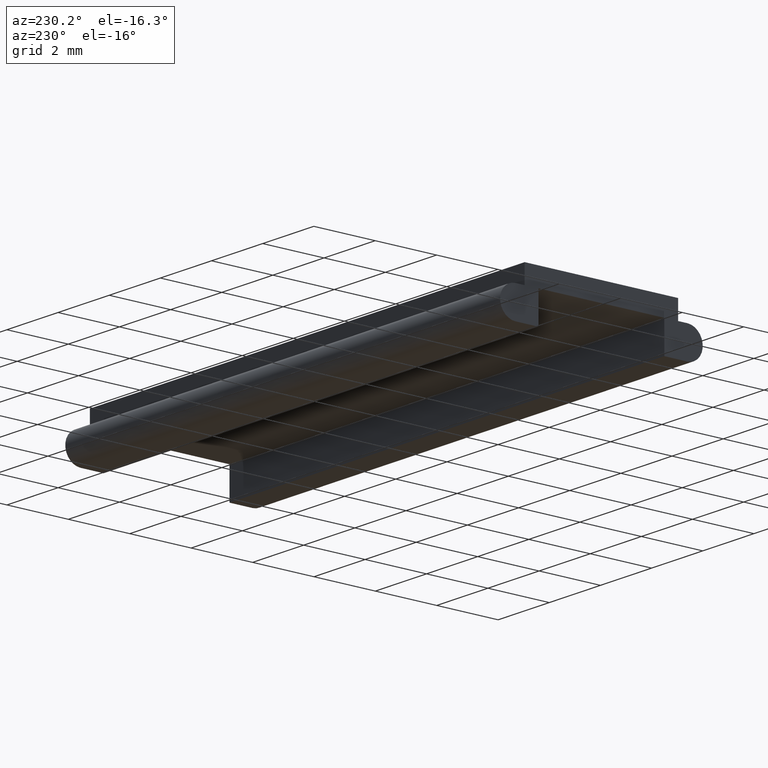
[diagram: clean part render]
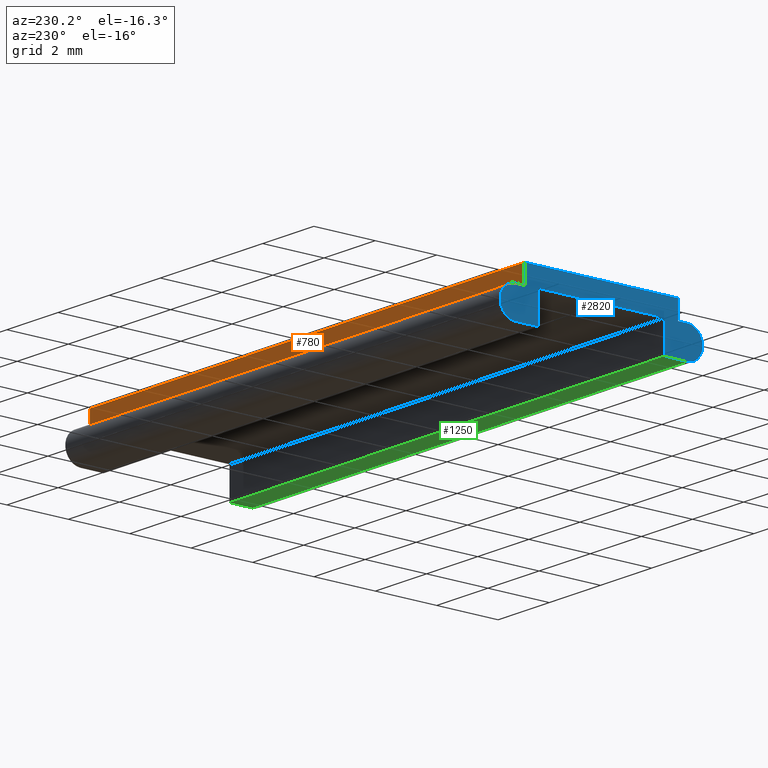
[diagram: same view with three faces highlighted in distinct colors, each labeled with its STEP entity id]
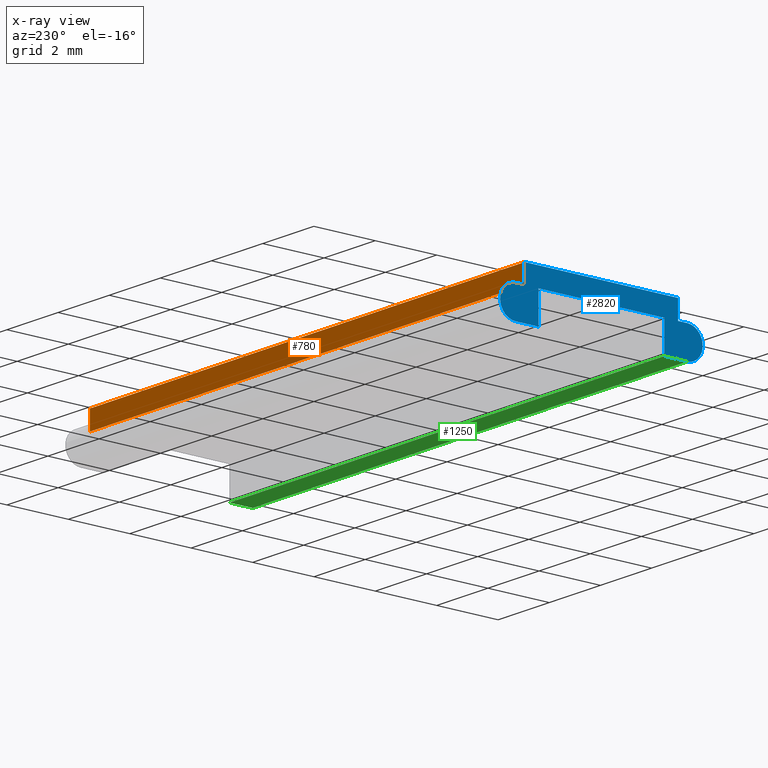
[diagram: x-ray of the same camera — body ghosted, the three highlighted faces saturated]
A machine part, auxiliary view with three faces highlighted in distinct colors.
The next image is the same camera in x-ray (body ghosted, the three faces saturated) — at least one of them is partly hidden behind the body in this view.
Their STEP definitions:

[orange] entity #780 — the highlighted planar face has unit normal (0, 1, 0).
#100=CARTESIAN_POINT('',(398.426447634406,987.424347545384,
0.0999999999999876));
#110=VERTEX_POINT('',#100);
#160=CARTESIAN_POINT('',(0.,987.424347545384,0.0999999999999876));
#170=DIRECTION('',(-1.,0.,0.));
#180=VECTOR('',#170,1.);
#190=LINE('',#160,#180);
#200=CARTESIAN_POINT('',(381.426447634406,987.424347545384,
0.0999999999999876));
#210=VERTEX_POINT('',#200);
#220=EDGE_CURVE('',#110,#210,#190,.T.);
#480=CARTESIAN_POINT('',(381.426447634406,987.424347545384,
-0.300000000000022));
#490=DIRECTION('',(0.,-1.,0.));
#500=DIRECTION('',(0.,0.,1.));
#510=AXIS2_PLACEMENT_3D('',#480,#490,#500);
#520=PLANE('',#510);
#530=CARTESIAN_POINT('',(381.426447634406,987.424347545384,0.));
#540=DIRECTION('',(0.,0.,-1.));
#550=VECTOR('',#540,1.);
#560=LINE('',#530,#550);
#570=CARTESIAN_POINT('',(381.426447634406,987.424347545384,
-0.500000000000021));
#580=VERTEX_POINT('',#570);
#590=EDGE_CURVE('',#210,#580,#560,.T.);
#600=ORIENTED_EDGE('',*,*,#590,.T.);
#610=ORIENTED_EDGE('',*,*,#220,.T.);
#620=CARTESIAN_POINT('',(398.426447634406,987.424347545384,0.));
#630=DIRECTION('',(0.,0.,1.));
#640=VECTOR('',#630,1.);
#650=LINE('',#620,#640);
#660=CARTESIAN_POINT('',(398.426447634406,987.424347545384,
-0.500000000000021));
#670=VERTEX_POINT('',#660);
#680=EDGE_CURVE('',#670,#110,#650,.T.);
#690=ORIENTED_EDGE('',*,*,#680,.T.);
#700=CARTESIAN_POINT('',(0.,987.424347545384,-0.500000000000021));
#710=DIRECTION('',(-1.,0.,0.));
#720=VECTOR('',#710,1.);
#730=LINE('',#700,#720);
#740=EDGE_CURVE('',#670,#580,#730,.T.);
#750=ORIENTED_EDGE('',*,*,#740,.F.);
#760=EDGE_LOOP('',(#750,#690,#610,#600));
#770=FACE_OUTER_BOUND('',#760,.T.);
#780=ADVANCED_FACE('',(#770),#520,.T.);

[blue] entity #2820 — the highlighted planar face has unit normal (-1, 0, 0).
#60=CARTESIAN_POINT('',(398.426447634406,0.,0.100000000000048));
#70=DIRECTION('',(0.,1.,-6.12323399573677E-17));
#80=VECTOR('',#70,1.);
#90=LINE('',#60,#80);
#100=CARTESIAN_POINT('',(398.426447634406,987.424347545384,
0.0999999999999876));
#110=VERTEX_POINT('',#100);
#120=CARTESIAN_POINT('',(398.426447634406,992.424347545384,
0.0999999999999873));
#130=VERTEX_POINT('',#120);
#140=EDGE_CURVE('',#110,#130,#90,.T.);
#620=CARTESIAN_POINT('',(398.426447634406,987.424347545384,0.));
#630=DIRECTION('',(0.,0.,1.));
#640=VECTOR('',#630,1.);
#650=LINE('',#620,#640);
#660=CARTESIAN_POINT('',(398.426447634406,987.424347545384,
-0.500000000000021));
#670=VERTEX_POINT('',#660);
#680=EDGE_CURVE('',#670,#110,#650,.T.);
#950=CARTESIAN_POINT('',(398.426447634406,991.974347545384,
-1.50000000000001));
#960=VERTEX_POINT('',#950);
#1010=CARTESIAN_POINT('',(398.426447634406,0.,-1.49999999999995));
#1020=DIRECTION('',(0.,-1.,6.12323399573677E-17));
#1030=VECTOR('',#1020,1.);
#1040=LINE('',#1010,#1030);
#1050=CARTESIAN_POINT('',(398.426447634406,992.724347545384,
-1.50000000000001));
#1060=VERTEX_POINT('',#1050);
#1070=EDGE_CURVE('',#1060,#960,#1040,.T.);
#1520=CARTESIAN_POINT('',(398.426447634406,992.724347545384,
-0.500000000000021));
#1530=VERTEX_POINT('',#1520);
#1560=CARTESIAN_POINT('',(398.426447634406,0.,-0.500000000000021));
#1570=DIRECTION('',(0.,1.,0.));
#1580=VECTOR('',#1570,1.);
#1590=LINE('',#1560,#1580);
#1600=CARTESIAN_POINT('',(398.426447634406,992.424347545384,
-0.500000000000021));
#1610=VERTEX_POINT('',#1600);
#1620=EDGE_CURVE('',#1610,#1530,#1590,.T.);
#1970=CARTESIAN_POINT('',(398.426447634406,991.974347545384,
-0.500000000000021));
#1980=VERTEX_POINT('',#1970);
#2010=CARTESIAN_POINT('',(398.426447634406,991.974347545384,0.));
#2020=DIRECTION('',(0.,0.,1.));
#2030=VECTOR('',#2020,1.);
#2040=LINE('',#2010,#2030);
#2050=EDGE_CURVE('',#960,#1980,#2040,.T.);
#2180=CARTESIAN_POINT('',(398.426447634406,993.884349945384,
-1.12500000000001));
#2190=DIRECTION('',(1.,0.,0.));
#2200=DIRECTION('',(0.,-6.12323399573677E-17,-1.));
#2210=AXIS2_PLACEMENT_3D('',#2180,#2190,#2200);
#2220=PLANE('',#2210);
#2230=ORIENTED_EDGE('',*,*,#680,.F.);
#2240=ORIENTED_EDGE('',*,*,#140,.F.);
#2250=CARTESIAN_POINT('',(398.426447634406,992.424347545384,0.));
#2260=DIRECTION('',(0.,0.,-1.));
#2270=VECTOR('',#2260,1.);
#2280=LINE('',#2250,#2270);
#2290=EDGE_CURVE('',#130,#1610,#2280,.T.);
#2300=ORIENTED_EDGE('',*,*,#2290,.F.);
#2310=ORIENTED_EDGE('',*,*,#1620,.F.);
#2320=CARTESIAN_POINT('',(398.426447634406,992.724347545384,
-1.00000000000002));
#2330=DIRECTION('',(1.,0.,0.));
#2340=DIRECTION('',(0.,1.,0.));
#2350=AXIS2_PLACEMENT_3D('',#2320,#2330,#2340);
#2360=CIRCLE('',#2350,0.5);
#2370=EDGE_CURVE('',#1060,#1530,#2360,.T.);
#2380=ORIENTED_EDGE('',*,*,#2370,.T.);
#2390=ORIENTED_EDGE('',*,*,#1070,.F.);
#2400=ORIENTED_EDGE('',*,*,#2050,.F.);
#2410=CARTESIAN_POINT('',(398.426447634406,0.,-0.500000000000021));
#2420=DIRECTION('',(0.,-1.,0.));
#2430=VECTOR('',#2420,1.);
#2440=LINE('',#2410,#2430);
#2450=CARTESIAN_POINT('',(398.426447634406,987.874347545384,
-0.500000000000021));
#2460=VERTEX_POINT('',#2450);
#2470=EDGE_CURVE('',#1980,#2460,#2440,.T.);
#2480=ORIENTED_EDGE('',*,*,#2470,.F.);
#2490=CARTESIAN_POINT('',(398.426447634406,987.874347545384,0.));
#2500=DIRECTION('',(0.,0.,-1.));
#2510=VECTOR('',#2500,1.);
#2520=LINE('',#2490,#2510);
#2530=CARTESIAN_POINT('',(398.426447634406,987.874347545384,
-1.50000000000001));
#2540=VERTEX_POINT('',#2530);
#2550=EDGE_CURVE('',#2460,#2540,#2520,.T.);
#2560=ORIENTED_EDGE('',*,*,#2550,.F.);
#2570=CARTESIAN_POINT('',(398.426447634406,0.,-1.49999999999995));
#2580=DIRECTION('',(0.,-1.,6.12323399573677E-17));
#2590=VECTOR('',#2580,1.);
#2600=LINE('',#2570,#2590);
#2610=CARTESIAN_POINT('',(398.426447634406,987.124347545384,
-1.50000000000002));
#2620=VERTEX_POINT('',#2610);
#2630=EDGE_CURVE('',#2540,#2620,#2600,.T.);
#2640=ORIENTED_EDGE('',*,*,#2630,.F.);
#2650=CARTESIAN_POINT('',(398.426447634406,987.124347545384,
-1.00000000000002));
#2660=DIRECTION('',(1.,0.,0.));
#2670=DIRECTION('',(0.,1.,0.));
#2680=AXIS2_PLACEMENT_3D('',#2650,#2660,#2670);
#2690=CIRCLE('',#2680,0.5);
#2700=CARTESIAN_POINT('',(398.426447634406,987.124347545384,
-0.500000000000021));
#2710=VERTEX_POINT('',#2700);
#2720=EDGE_CURVE('',#2710,#2620,#2690,.T.);
#2730=ORIENTED_EDGE('',*,*,#2720,.T.);
#2740=CARTESIAN_POINT('',(398.426447634406,0.,-0.500000000000021));
#2750=DIRECTION('',(0.,1.,0.));
#2760=VECTOR('',#2750,1.);
#2770=LINE('',#2740,#2760);
#2780=EDGE_CURVE('',#2710,#670,#2770,.T.);
#2790=ORIENTED_EDGE('',*,*,#2780,.F.);
#2800=EDGE_LOOP('',(#2790,#2730,#2640,#2560,#2480,#2400,#2390,#2380,
#2310,#2300,#2240,#2230));
#2810=FACE_OUTER_BOUND('',#2800,.T.);
#2820=ADVANCED_FACE('',(#2810),#2220,.T.);

[green] entity #1250 — the highlighted planar face has unit normal (0, 0, -1).
#860=CARTESIAN_POINT('',(398.426447634406,993.884349945384,
-1.50000000000001));
#870=DIRECTION('',(-0.,-6.12323399573677E-17,-1.));
#880=DIRECTION('',(-1.,0.,0.));
#890=AXIS2_PLACEMENT_3D('',#860,#870,#880);
#900=PLANE('',#890);
#910=CARTESIAN_POINT('',(0.,991.974347545384,-1.50000000000001));
#920=DIRECTION('',(-1.,0.,0.));
#930=VECTOR('',#920,1.);
#940=LINE('',#910,#930);
#950=CARTESIAN_POINT('',(398.426447634406,991.974347545384,
-1.50000000000001));
#960=VERTEX_POINT('',#950);
#970=CARTESIAN_POINT('',(381.426447634406,991.974347545384,
-1.50000000000001));
#980=VERTEX_POINT('',#970);
#990=EDGE_CURVE('',#960,#980,#940,.T.);
#1000=ORIENTED_EDGE('',*,*,#990,.T.);
#1010=CARTESIAN_POINT('',(398.426447634406,0.,-1.49999999999995));
#1020=DIRECTION('',(0.,-1.,6.12323399573677E-17));
#1030=VECTOR('',#1020,1.);
#1040=LINE('',#1010,#1030);
#1050=CARTESIAN_POINT('',(398.426447634406,992.724347545384,
-1.50000000000001));
#1060=VERTEX_POINT('',#1050);
#1070=EDGE_CURVE('',#1060,#960,#1040,.T.);
#1080=ORIENTED_EDGE('',*,*,#1070,.T.);
#1090=CARTESIAN_POINT('',(381.426447634406,992.724347545384,
-1.50000000000002));
#1100=DIRECTION('',(1.,0.,0.));
#1110=VECTOR('',#1100,1.);
#1120=LINE('',#1090,#1110);
#1130=CARTESIAN_POINT('',(381.426447634406,992.724347545384,
-1.50000000000001));
#1140=VERTEX_POINT('',#1130);
#1150=EDGE_CURVE('',#1140,#1060,#1120,.T.);
#1160=ORIENTED_EDGE('',*,*,#1150,.T.);
#1170=CARTESIAN_POINT('',(381.426447634406,0.,-1.49999999999995));
#1180=DIRECTION('',(0.,1.,-6.12323399573677E-17));
#1190=VECTOR('',#1180,1.);
#1200=LINE('',#1170,#1190);
#1210=EDGE_CURVE('',#980,#1140,#1200,.T.);
#1220=ORIENTED_EDGE('',*,*,#1210,.T.);
#1230=EDGE_LOOP('',(#1220,#1160,#1080,#1000));
#1240=FACE_OUTER_BOUND('',#1230,.T.);
#1250=ADVANCED_FACE('',(#1240),#900,.T.);